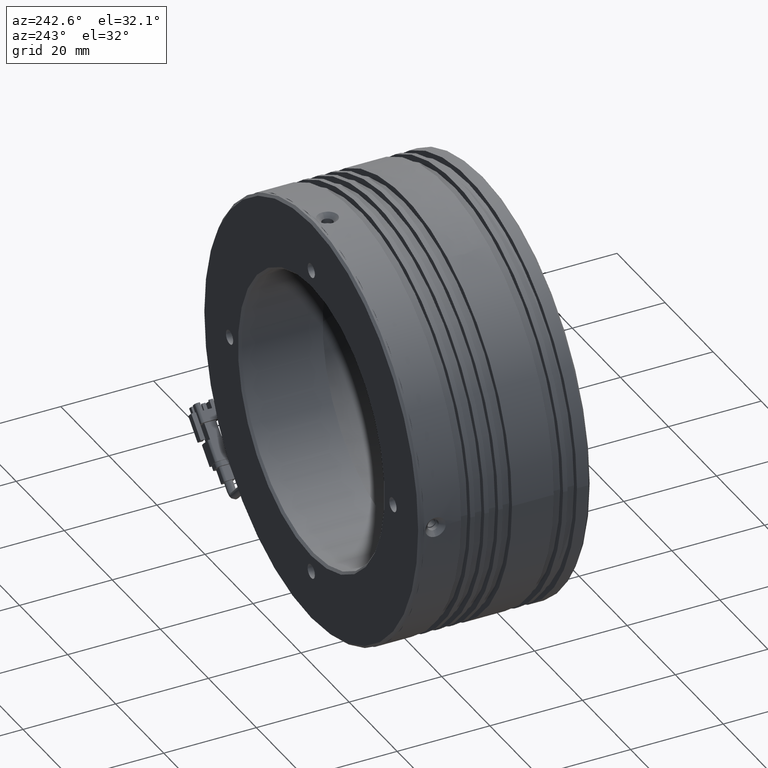
[diagram: clean part render]
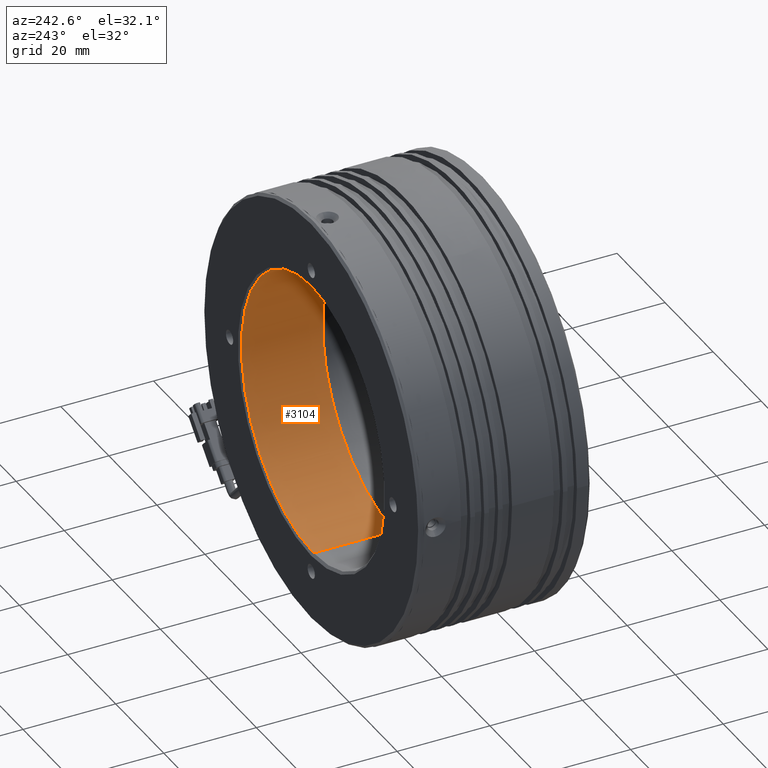
[diagram: same view with one face highlighted and labeled with its STEP entity id]
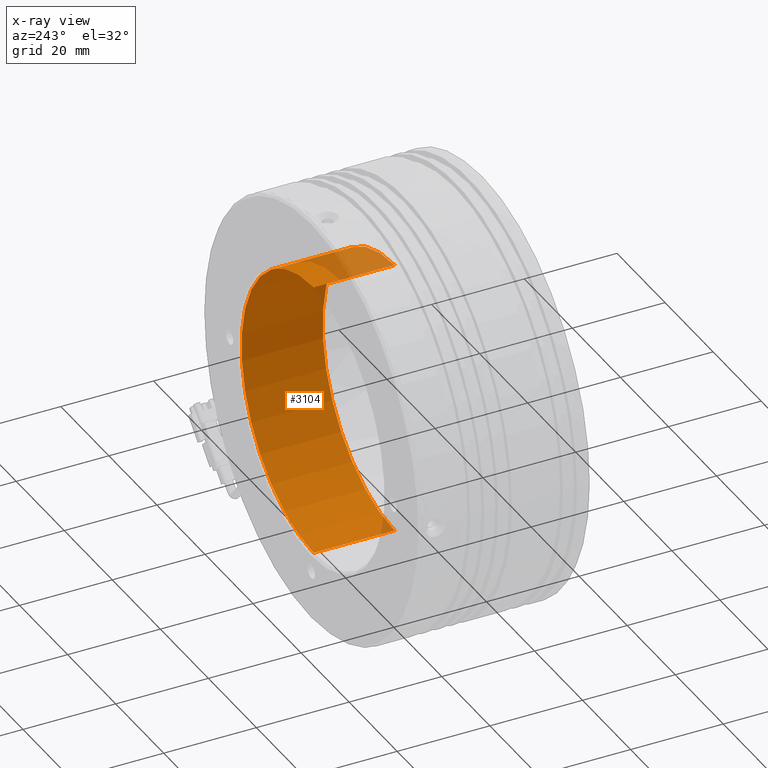
[diagram: x-ray of the same camera — body ghosted, the highlighted face saturated]
A machine part, auxiliary view. The second image highlights one B-rep face of the part: STEP entity #3104.
The next image is the same camera in x-ray: the body ghosted, the highlighted face saturated — about 7% of this face is hidden behind the body in this view.
In plain terms, the highlighted cylindrical surface (partial cylindrical patch) has radius 30 mm, axis along (-0, -1, -0).
Its self-contained STEP definition (entity closure, byte-faithful):
#89 = FACE_OUTER_BOUND ( 'NONE', #9051, .T. ) ;
#781 = VERTEX_POINT ( 'NONE', #11632 ) ;
#811 = CIRCLE ( 'NONE', #9861, 30.00000000000000000 ) ;
#1320 = VECTOR ( 'NONE', #5908, 1000.000000000000000 ) ;
#1368 = EDGE_CURVE ( 'NONE', #5697, #9392, #10935, .T. ) ;
#1407 = CARTESIAN_POINT ( 'NONE',  ( -13.35553552304124700, 13.86606337979335500, 30.00000000000000000 ) ) ;
#2201 = EDGE_CURVE ( 'NONE', #5697, #781, #6705, .T. ) ;
#2255 = EDGE_CURVE ( 'NONE', #9392, #3885, #811, .T. ) ;
#2323 = CARTESIAN_POINT ( 'NONE',  ( -13.35553552304124700, -3.633936620206640100, 30.00000000000000000 ) ) ;
#2495 = DIRECTION ( 'NONE',  ( 0.0000000000000000000, 0.0000000000000000000, -1.000000000000000000 ) ) ;
#2540 = DIRECTION ( 'NONE',  ( 0.0000000000000000000, 1.000000000000000000, 0.0000000000000000000 ) ) ;
#2620 = CARTESIAN_POINT ( 'NONE',  ( -13.35553552304125100, -3.633936620206640100, 0.0000000000000000000 ) ) ;
#2969 = EDGE_CURVE ( 'NONE', #781, #3885, #10324, .T. ) ;
#3104 = ADVANCED_FACE ( 'NONE', ( #89 ), #3661, .F. ) ;
#3230 = DIRECTION ( 'NONE',  ( -0.0000000000000000000, -1.000000000000000000, -0.0000000000000000000 ) ) ;
#3661 = CYLINDRICAL_SURFACE ( 'NONE', #5254, 30.00000000000000000 ) ;
#3885 = VERTEX_POINT ( 'NONE', #7035 ) ;
#3924 = DIRECTION ( 'NONE',  ( 0.0000000000000000000, 0.0000000000000000000, 1.000000000000000000 ) ) ;
#3963 = DIRECTION ( 'NONE',  ( -0.0000000000000000000, 1.000000000000000000, -0.0000000000000000000 ) ) ;
#4000 = CARTESIAN_POINT ( 'NONE',  ( -13.35553552304125100, 13.86606337979335500, 0.0000000000000000000 ) ) ;
#4258 = ORIENTED_EDGE ( 'NONE', *, *, #2969, .T. ) ;
#4549 = ORIENTED_EDGE ( 'NONE', *, *, #2201, .T. ) ;
#4921 = AXIS2_PLACEMENT_3D ( 'NONE', #4000, #3963, #3924 ) ;
#4959 = CARTESIAN_POINT ( 'NONE',  ( -13.35553552304124700, -50.12162005928659200, 30.00000000000000000 ) ) ;
#5254 = AXIS2_PLACEMENT_3D ( 'NONE', #10979, #5379, #5408 ) ;
#5379 = DIRECTION ( 'NONE',  ( -0.0000000000000000000, -1.000000000000000000, -0.0000000000000000000 ) ) ;
#5408 = DIRECTION ( 'NONE',  ( 0.0000000000000000000, 0.0000000000000000000, -1.000000000000000000 ) ) ;
#5697 = VERTEX_POINT ( 'NONE', #1407 ) ;
#5908 = DIRECTION ( 'NONE',  ( -0.0000000000000000000, -1.000000000000000000, -0.0000000000000000000 ) ) ;
#6705 = CIRCLE ( 'NONE', #4921, 30.00000000000000000 ) ;
#7035 = CARTESIAN_POINT ( 'NONE',  ( -13.35553552304125100, -3.633936620206640100, -30.00000000000000000 ) ) ;
#7586 = VECTOR ( 'NONE', #3230, 1000.000000000000000 ) ;
#7851 = CARTESIAN_POINT ( 'NONE',  ( -13.35553552304125100, -50.12162005928659200, -30.00000000000000000 ) ) ;
#9051 = EDGE_LOOP ( 'NONE', ( #9763, #4549, #4258, #11071 ) ) ;
#9392 = VERTEX_POINT ( 'NONE', #2323 ) ;
#9763 = ORIENTED_EDGE ( 'NONE', *, *, #1368, .F. ) ;
#9861 = AXIS2_PLACEMENT_3D ( 'NONE', #2620, #2540, #2495 ) ;
#10324 = LINE ( 'NONE', #7851, #7586 ) ;
#10935 = LINE ( 'NONE', #4959, #1320 ) ;
#10979 = CARTESIAN_POINT ( 'NONE',  ( -13.35553552304125100, -50.12162005928659200, 0.0000000000000000000 ) ) ;
#11071 = ORIENTED_EDGE ( 'NONE', *, *, #2255, .F. ) ;
#11632 = CARTESIAN_POINT ( 'NONE',  ( -13.35553552304125100, 13.86606337979335500, -30.00000000000000000 ) ) ;